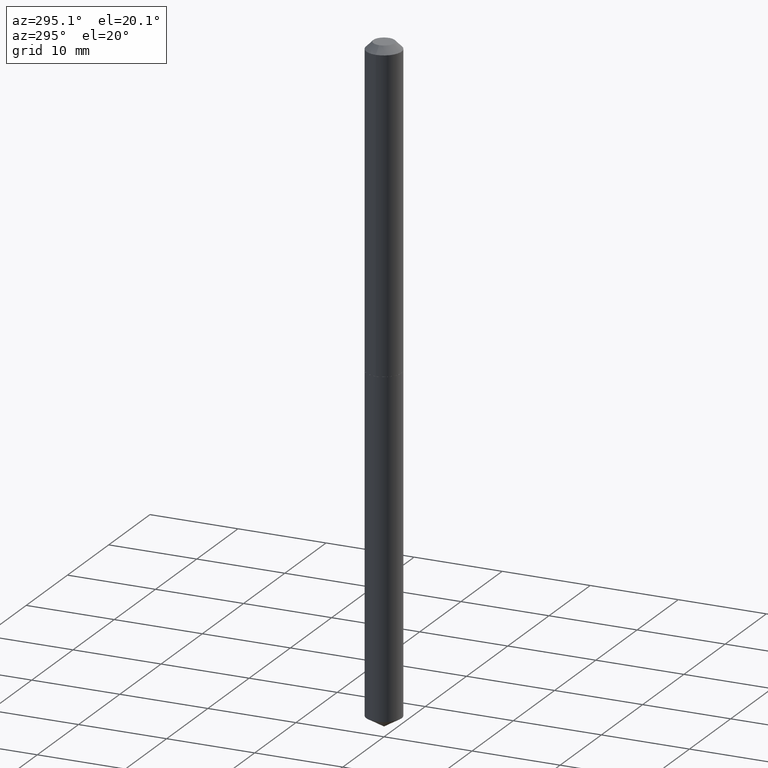
[diagram: clean part render]
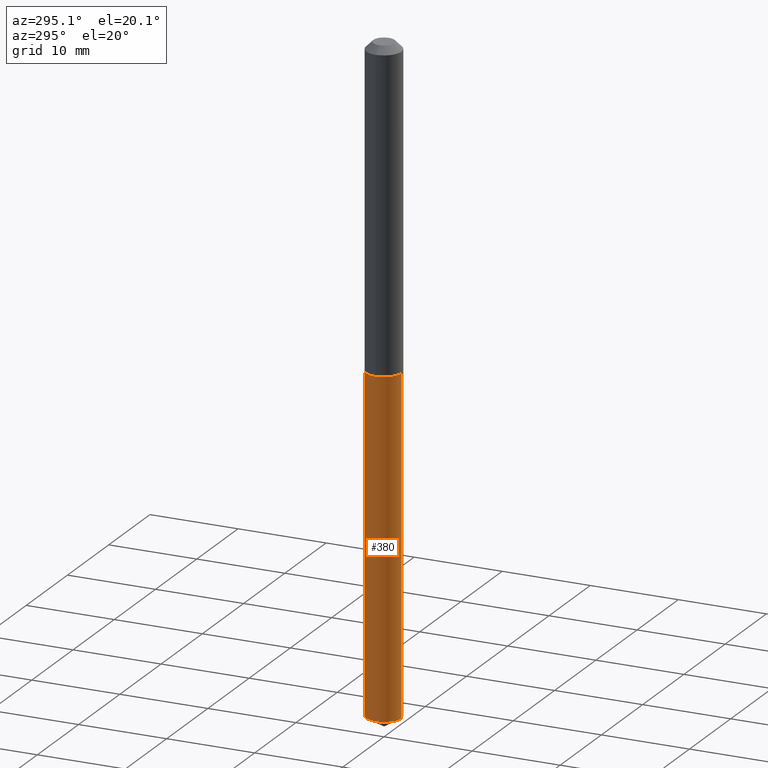
[diagram: same view with one face highlighted and labeled with its STEP entity id]
A machine part, auxiliary view. The second image highlights one B-rep face of the part: STEP entity #380.
In plain terms, the highlighted cylindrical surface (edge-blend (fillet) strip) has radius 2.0002 mm, axis along (-0, 0, 1).
Its self-contained STEP definition (entity closure, byte-faithful):
#3 = EDGE_CURVE ( 'NONE', #166, #196, #264, .T. ) ;
#13 = AXIS2_PLACEMENT_3D ( 'NONE', #307, #78, #312 ) ;
#18 = LINE ( 'NONE', #42, #227 ) ;
#19 = DIRECTION ( 'NONE',  ( -2.445110311145860319E-29, 3.491994724143659644E-15, 1.000000000000000000 ) ) ;
#21 = CARTESIAN_POINT ( 'NONE',  ( -5.499083108677586358E-16, -0.07875000000000495493, -1.417399999999999549 ) ) ;
#33 = CARTESIAN_POINT ( 'NONE',  ( 5.595524044111500950E-16, 0.07874999999999504618, -1.417399999999999993 ) ) ;
#42 = CARTESIAN_POINT ( 'NONE',  ( 5.595524044111134130E-16, 0.07874999999999504618, -1.417399999999999993 ) ) ;
#71 = ORIENTED_EDGE ( 'NONE', *, *, #308, .F. ) ;
#77 = VECTOR ( 'NONE', #185, 39.37007874015748143 ) ;
#78 = DIRECTION ( 'NONE',  ( -2.445110311145860319E-29, 3.491994724143659644E-15, 1.000000000000000000 ) ) ;
#88 = DIRECTION ( 'NONE',  ( -6.982962677686264344E-15, -1.000000000000000000, 3.469013325287953293E-15 ) ) ;
#110 = VERTEX_POINT ( 'NONE', #33 ) ;
#111 = DIRECTION ( 'NONE',  ( -2.445110311145860319E-29, 3.491994724143659644E-15, 1.000000000000000000 ) ) ;
#133 = ORIENTED_EDGE ( 'NONE', *, *, #275, .T. ) ;
#135 = DIRECTION ( 'NONE',  ( -6.982962677686264344E-15, -1.000000000000000000, 6.938026650575906587E-15 ) ) ;
#143 = CARTESIAN_POINT ( 'NONE',  ( 3.466207485886812543E-29, -4.948825649676273954E-15, -1.417399999999999771 ) ) ;
#159 = DIRECTION ( 'NONE',  ( -2.445110311145860319E-29, 3.491994724143659644E-15, 1.000000000000000000 ) ) ;
#163 = LINE ( 'NONE', #281, #77 ) ;
#166 = VERTEX_POINT ( 'NONE', #269 ) ;
#170 = ORIENTED_EDGE ( 'NONE', *, *, #3, .T. ) ;
#185 = DIRECTION ( 'NONE',  ( -2.445110311145860319E-29, 3.491994724143659644E-15, 1.000000000000000000 ) ) ;
#196 = VERTEX_POINT ( 'NONE', #359 ) ;
#219 = VERTEX_POINT ( 'NONE', #21 ) ;
#227 = VECTOR ( 'NONE', #159, 39.37007874015748143 ) ;
#233 = FACE_OUTER_BOUND ( 'NONE', #247, .T. ) ;
#247 = EDGE_LOOP ( 'NONE', ( #71, #170, #133, #252 ) ) ;
#252 = ORIENTED_EDGE ( 'NONE', *, *, #297, .F. ) ;
#264 = CIRCLE ( 'NONE', #375, 0.07875000000000000056 ) ;
#269 = CARTESIAN_POINT ( 'NONE',  ( 5.595524044111497992E-16, 0.07874999999998984201, -2.905482226251580702 ) ) ;
#275 = EDGE_CURVE ( 'NONE', #196, #219, #163, .T. ) ;
#281 = CARTESIAN_POINT ( 'NONE',  ( -5.499083108677586358E-16, -0.07875000000000495493, -1.417399999999999549 ) ) ;
#282 = CARTESIAN_POINT ( 'NONE',  ( 7.104732681127439624E-29, -1.014520093283874505E-14, -2.905482226251580258 ) ) ;
#294 = CIRCLE ( 'NONE', #13, 0.07875000000000000056 ) ;
#297 = EDGE_CURVE ( 'NONE', #110, #219, #294, .T. ) ;
#307 = CARTESIAN_POINT ( 'NONE',  ( 3.466207485886812543E-29, -4.948825649676273954E-15, -1.417399999999999771 ) ) ;
#308 = EDGE_CURVE ( 'NONE', #166, #110, #18, .T. ) ;
#312 = DIRECTION ( 'NONE',  ( -6.982962677686264344E-15, -1.000000000000000000, 3.469013325287953293E-15 ) ) ;
#327 = AXIS2_PLACEMENT_3D ( 'NONE', #143, #111, #88 ) ;
#355 = CYLINDRICAL_SURFACE ( 'NONE', #327, 0.07875000000000000056 ) ;
#359 = CARTESIAN_POINT ( 'NONE',  ( -5.499083108677222496E-16, -0.07875000000001011746, -2.905482226251579814 ) ) ;
#375 = AXIS2_PLACEMENT_3D ( 'NONE', #282, #19, #135 ) ;
#380 = ADVANCED_FACE ( 'NONE', ( #233 ), #355, .T. ) ;